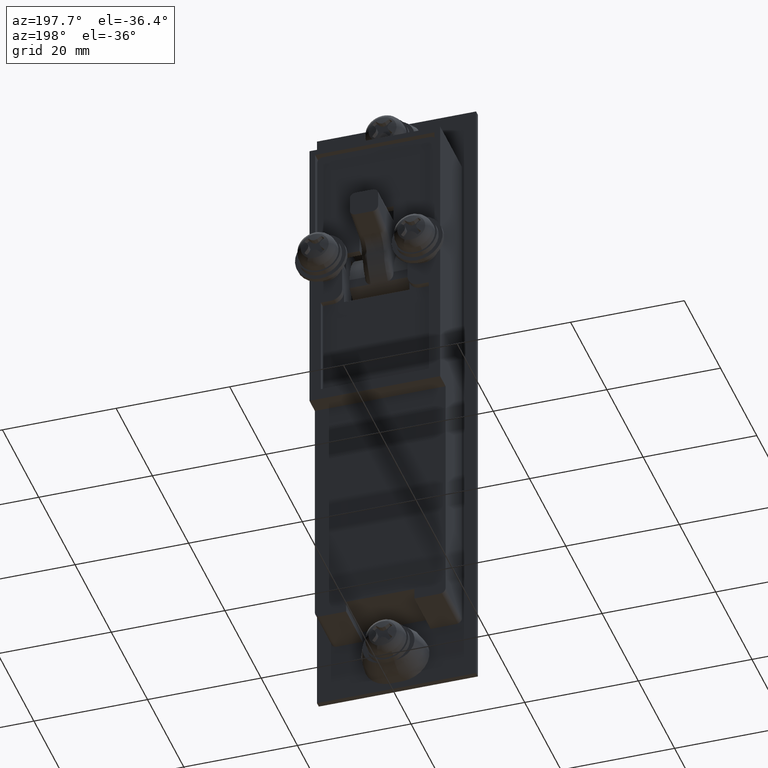
[diagram: clean part render]
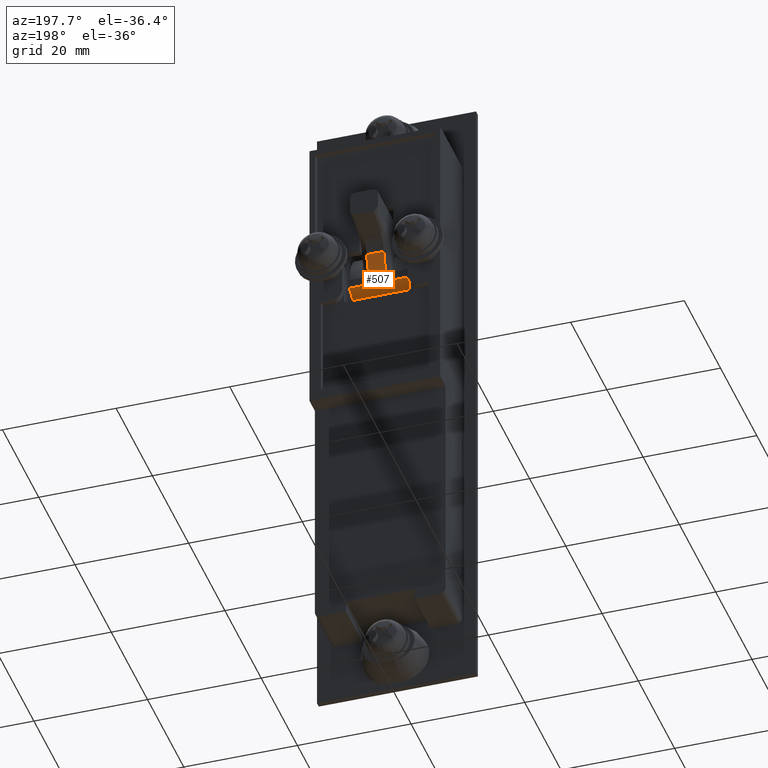
[diagram: same view with one face highlighted and labeled with its STEP entity id]
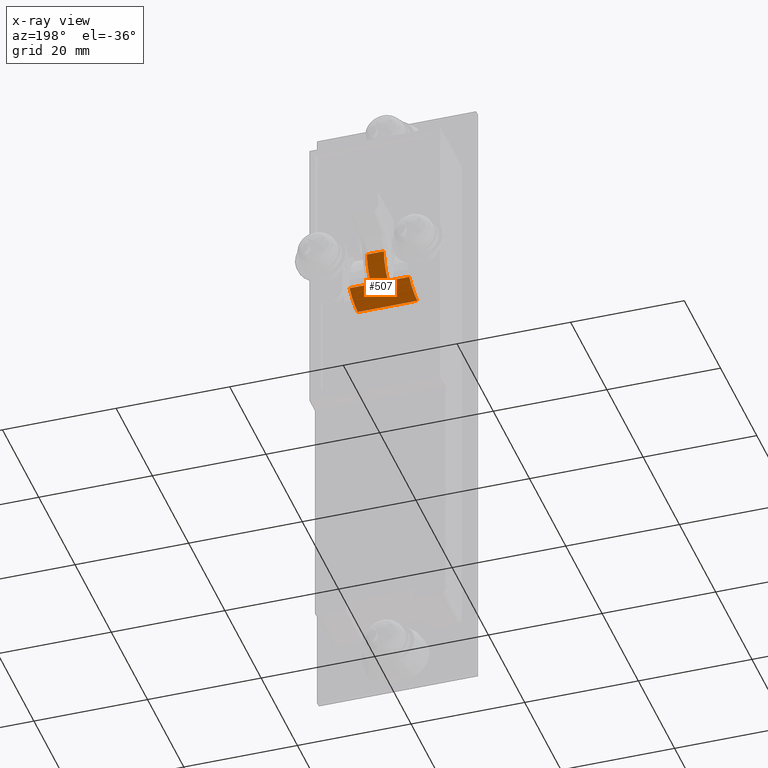
[diagram: x-ray of the same camera — body ghosted, the highlighted face saturated]
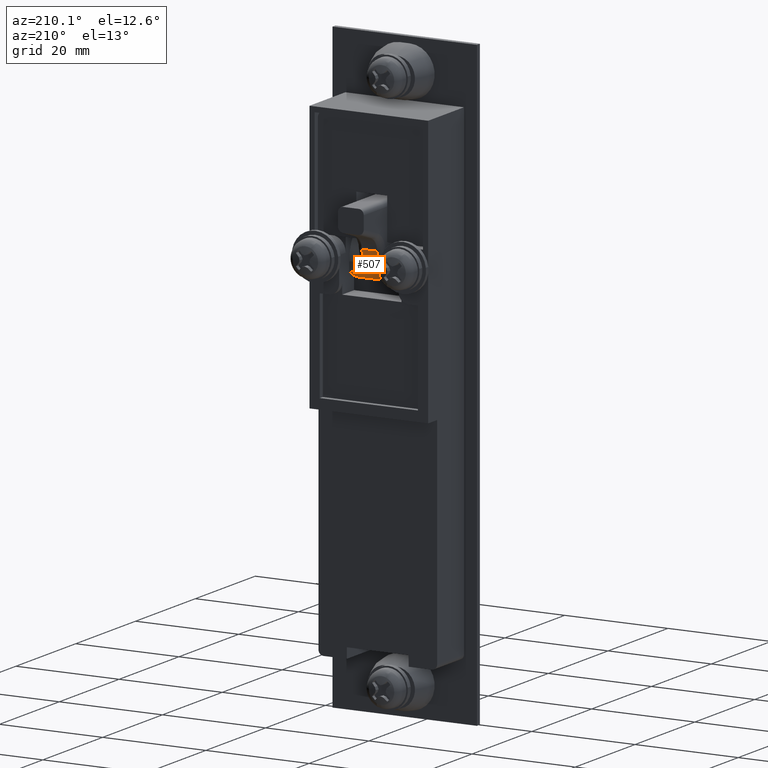
[diagram: same view with one face highlighted and labeled with its STEP entity id]
A machine part, auxiliary view. The second image highlights one B-rep face of the part: STEP entity #507.
The next image is the same camera in x-ray: the body ghosted, the highlighted face saturated — about 0% of this face is hidden behind the body in this view.
A second angle (auxiliary view) of the same face is appended — the face is thin or edge-on in the first view.
In plain terms, the highlighted cylindrical surface (partial cylindrical patch) has radius 7 mm, axis along (1, -0, 0).
Its self-contained STEP definition (entity closure, byte-faithful):
#507=ADVANCED_FACE('',(#2441),#2440,.T.);
#2440=CYLINDRICAL_SURFACE('',#4445,7.00000000000E+00);
#2441=FACE_OUTER_BOUND('',#4446,.T.);
#4442=CARTESIAN_POINT('',(-7.22340687651E+00,-5.51906250000E+00,1.99743401503E+00));
#4443=DIRECTION('',(-5.56889567803E-18,-1.00000000000E+00,6.07622044802E-18));
#4444=DIRECTION('',(-9.98570898860E-01,5.88566893635E-18,5.34430533347E-02));
#4445=AXIS2_PLACEMENT_3D('',#4442,#4443,#4444);
#4446=EDGE_LOOP('',(#5991,#5992,#5993,#5994,#5995,#5996,#5997,#5998));
#5991=ORIENTED_EDGE('',*,*,#6947,.T.);
#5992=ORIENTED_EDGE('',*,*,#6948,.T.);
#5993=ORIENTED_EDGE('',*,*,#6949,.T.);
#5994=ORIENTED_EDGE('',*,*,#6950,.F.);
#5995=ORIENTED_EDGE('',*,*,#6951,.F.);
#5996=ORIENTED_EDGE('',*,*,#6952,.T.);
#5997=ORIENTED_EDGE('',*,*,#6953,.T.);
#5998=ORIENTED_EDGE('',*,*,#6935,.T.);
#6935=EDGE_CURVE('',#10753,#10767,#10774,.T.);
#6947=EDGE_CURVE('',#10767,#10851,#10852,.T.);
#6948=EDGE_CURVE('',#10851,#10858,#10859,.T.);
#6949=EDGE_CURVE('',#10858,#10865,#10866,.T.);
#6950=EDGE_CURVE('',#10872,#10865,#10873,.T.);
#6951=EDGE_CURVE('',#10879,#10872,#10880,.T.);
#6952=EDGE_CURVE('',#10879,#10886,#10887,.T.);
#6953=EDGE_CURVE('',#10886,#10753,#10893,.T.);
#10753=VERTEX_POINT('',#14238);
#10767=VERTEX_POINT('',#14268);
#10774=CIRCLE('',#14276,7.00000000000E+00);
#10851=VERTEX_POINT('',#14321);
#10852=LINE('',#14322,#14323);
#10858=VERTEX_POINT('',#14325);
#10859=CIRCLE('',#14329,7.00000000000E+00);
#10865=VERTEX_POINT('',#14330);
#10866=LINE('',#14331,#14332);
#10872=VERTEX_POINT('',#14334);
#10873=CIRCLE('',#14338,7.00000000000E+00);
#10879=VERTEX_POINT('',#14339);
#10880=LINE('',#14340,#14341);
#10886=VERTEX_POINT('',#14343);
#10887=CIRCLE('',#14347,7.00000000000E+00);
#10893=LINE('',#14348,#14349);
#14238=CARTESIAN_POINT('',(-2.50000000000E+00,1.50000000000E+00,-3.16874711603E+00));
#14268=CARTESIAN_POINT('',(-2.48519854969E-01,1.50000000000E+00,1.40502280921E+00));
#14273=CARTESIAN_POINT('',(-7.22340687651E+00,1.50000000000E+00,1.99743401503E+00));
#14274=DIRECTION('',(-2.95640952482E-16,-1.00000000000E+00,3.31423137823E-16));
#14275=DIRECTION('',(-6.74772410930E-01,4.44089209850E-16,7.38025875866E-01));
#14276=AXIS2_PLACEMENT_3D('',#14273,#14274,#14275);
#14321=CARTESIAN_POINT('',(-2.48519854969E-01,-1.50000000000E+00,1.40502280921E+00));
#14322=CARTESIAN_POINT('',(-2.48519854969E-01,1.50000000000E+00,1.40502280921E+00));
#14323=VECTOR('',#14324,3.00000000000E+00);
#14324=DIRECTION('',(0.00000000000E+00,-1.00000000000E+00,0.00000000000E+00));
#14325=CARTESIAN_POINT('',(-2.50000000000E+00,-1.50000000000E+00,-3.16874711603E+00));
#14326=CARTESIAN_POINT('',(-7.22340687651E+00,-1.50000000000E+00,1.99743401503E+00));
#14327=DIRECTION('',(-4.42956779854E-16,1.00000000000E+00,3.21583620563E-17));
#14328=DIRECTION('',(-9.96412431648E-01,-4.44089209850E-16,8.46301722602E-02));
#14329=AXIS2_PLACEMENT_3D('',#14326,#14327,#14328);
#14330=CARTESIAN_POINT('',(-2.50000000000E+00,-5.25000000000E+00,-3.16874711603E+00));
#14331=CARTESIAN_POINT('',(-2.50000000000E+00,-1.50000000000E+00,-3.16874711603E+00));
#14332=VECTOR('',#14333,3.75000000000E+00);
#14333=DIRECTION('',(0.00000000000E+00,-1.00000000000E+00,0.00000000000E+00));
#14334=CARTESIAN_POINT('',(-7.00030236684E+00,-5.25000000000E+00,-4.99900968000E+00));
#14335=CARTESIAN_POINT('',(-7.22340687651E+00,-5.25000000000E+00,1.99743401503E+00));
#14336=DIRECTION('',(-2.28407190351E-17,-1.00000000000E+00,-7.28351094199E-19));
#14337=DIRECTION('',(-3.18720728097E-02,9.62964972194E-35,9.99491956433E-01));
#14338=AXIS2_PLACEMENT_3D('',#14335,#14336,#14337);
#14339=CARTESIAN_POINT('',(-7.00030236684E+00,5.25000000000E+00,-4.99900968000E+00));
#14340=CARTESIAN_POINT('',(-7.00030236684E+00,5.25000000000E+00,-4.99900968000E+00));
#14341=VECTOR('',#14342,1.05000000000E+01);
#14342=DIRECTION('',(0.00000000000E+00,-1.00000000000E+00,0.00000000000E+00));
#14343=CARTESIAN_POINT('',(-2.50000000000E+00,5.25000000000E+00,-3.16874711603E+00));
#14344=CARTESIAN_POINT('',(-7.22340687651E+00,5.25000000000E+00,1.99743401503E+00));
#14345=DIRECTION('',(2.28407190351E-17,-1.00000000000E+00,7.28351094199E-19));
#14346=DIRECTION('',(-3.18720728097E-02,-9.62964972194E-35,9.99491956433E-01));
#14347=AXIS2_PLACEMENT_3D('',#14344,#14345,#14346);
#14348=CARTESIAN_POINT('',(-2.50000000000E+00,5.25000000000E+00,-3.16874711603E+00));
#14349=VECTOR('',#14350,3.75000000000E+00);
#14350=DIRECTION('',(0.00000000000E+00,-1.00000000000E+00,0.00000000000E+00));